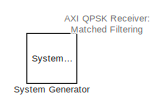
[diagram: root canvas - part 1/3, top center region]
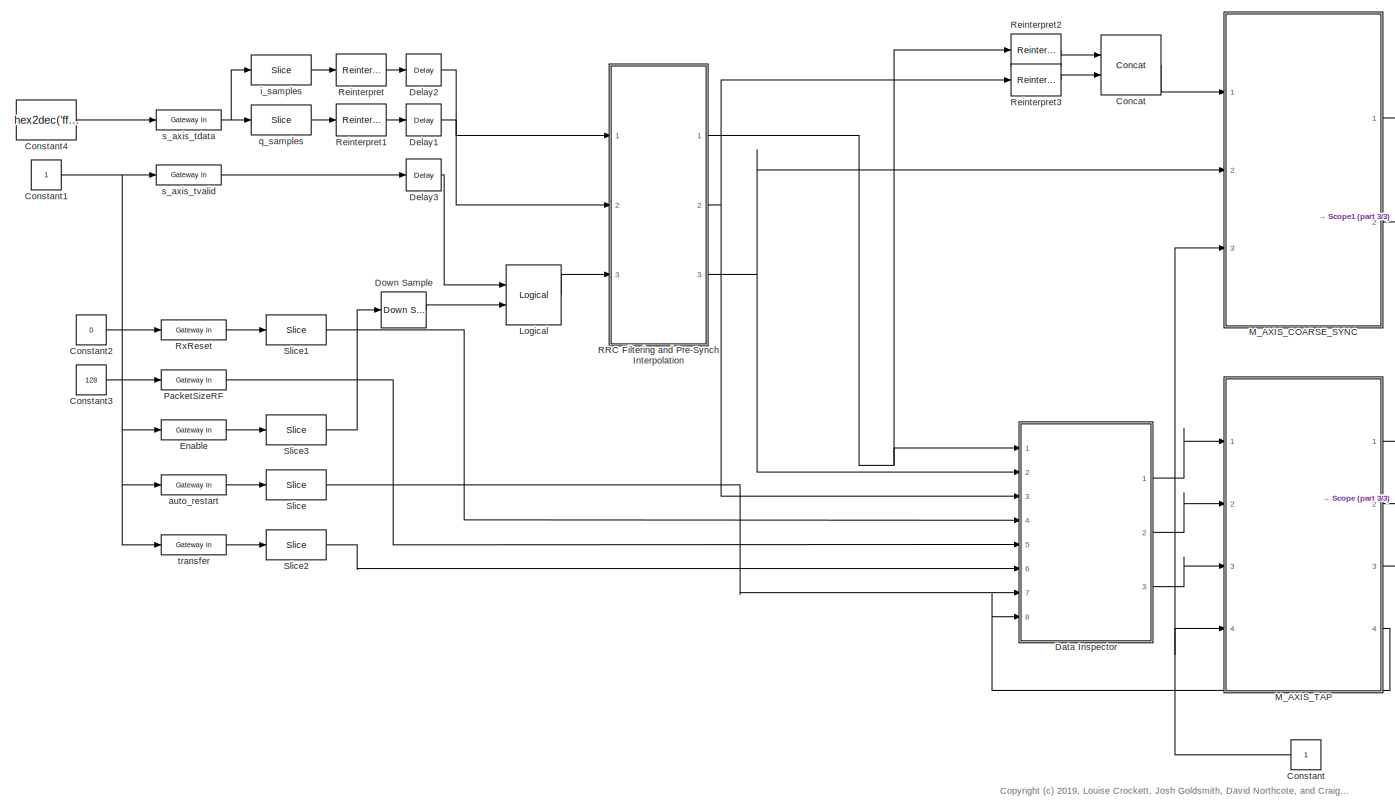
[diagram: root canvas - part 2/3, most of the canvas]
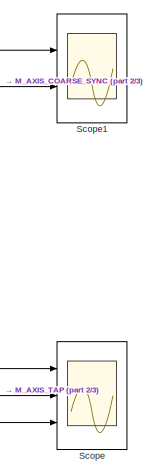
[diagram: root canvas - part 3/3, middle right region]
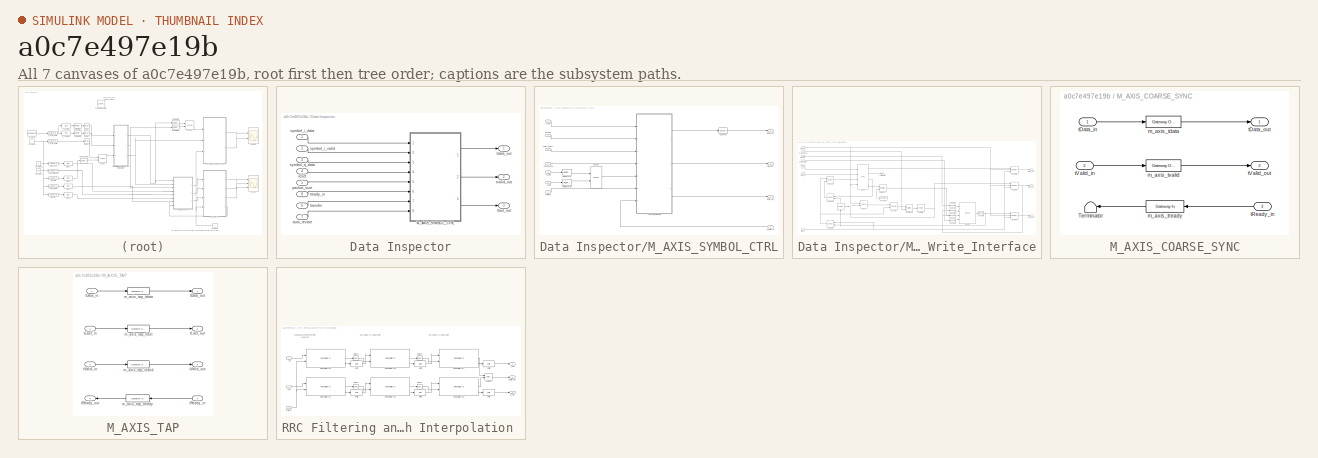
[diagram: thumbnail index - all 7 canvases of the model, root first then tree order]
MODEL slx_a0c7e497e19b
KIND model
CONFIG AbsTol = auto
CONFIG EnableMultiTasking = off
CONFIG FixedStep = auto
CONFIG InitFcn = fs_in = 25.6e6;
CONFIG MaxStep = auto
CONFIG MinStep = auto
CONFIG PreLoadFcn = design_filters_rx;      % run script to generate filter designs.\n\nRb = 1000;   % 1kbit / s\n\nRsym = Rb/2;   % 2 bits per symbol\n\nRsymbol = Rb/2;\n\nOSR = 32;\n\nf_error = 120;\n\nfc = 100e3;\n\nfs_in = 25.6e6;\n\n
CONFIG RelTol = 1e-3
CONFIG SampleTimeConstraint = Unconstrained
CONFIG Solver = VariableStepAuto
CONFIG SolverName = VariableStepAuto
CONFIG StartTime = 0.0
CONFIG StopTime = 10.0
BLOCK [Reference]  System Generator  REF=xbsIndex_r4/ System Generator
  AttributesFormatString = System\nGenerator
  Ports = []
  SourceBlock = xbsIndex_r4/ System Generator
  SourceType = Xilinx System Generator Block
  Tag = genX
  UserDataPersistent = on
BLOCK [Reference] Concat  REF=xbsIndex_r4/Concat
  Ports = [2, 1]
  SourceBlock = xbsIndex_r4/Concat
  SourceType = Xilinx Bus Concatenator Block
BLOCK [Constant] Constant
  OutDataTypeStr = boolean
  SampleTime = 1/fs_in
BLOCK [Constant] Constant1
  OutDataTypeStr = boolean
  SampleTime = -1
BLOCK [Constant] Constant2
  OutDataTypeStr = boolean
  SampleTime = -1
  Value = 0
BLOCK [Constant] Constant3
  OutDataTypeStr = uint32
  SampleTime = -1
  Value = 128
BLOCK [Constant] Constant4
  OutDataTypeStr = uint32
  SampleTime = 1/fs_in
  Value = hex2dec('ffff0000')
BLOCK [SubSystem] Data Inspector
  Ports = [8, 3]
  RequestExecContextInheritance = off
BLOCK [SubSystem] Data Inspector/M_AXIS_SYMBOL_CTRL
  Ports = [8, 3]
  RequestExecContextInheritance = off
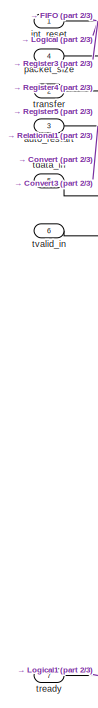
[diagram: Data Inspector/M_AXIS_SYMBOL_CTRL/AXI_Write_Interface - part 1/3, left side, full height]
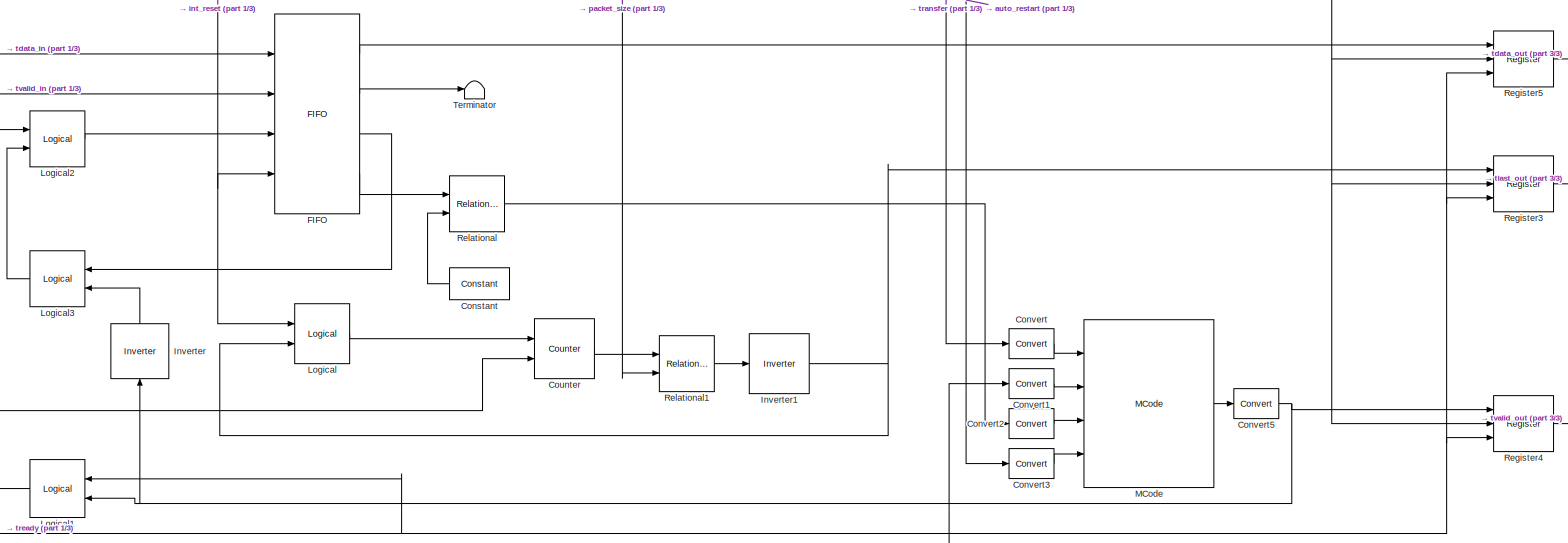
[diagram: Data Inspector/M_AXIS_SYMBOL_CTRL/AXI_Write_Interface - part 2/3, most of the canvas]
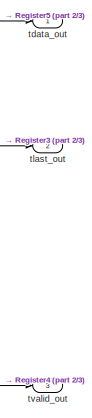
[diagram: Data Inspector/M_AXIS_SYMBOL_CTRL/AXI_Write_Interface - part 3/3, middle right region]
BLOCK [SubSystem] Data Inspector/M_AXIS_SYMBOL_CTRL/AXI_Write_Interface
  Ports = [7, 3]
  RequestExecContextInheritance = off
BLOCK [Reference] Data Inspector/M_AXIS_SYMBOL_CTRL/AXI_Write_Interface/Constant  REF=xbsIndex_r4/Constant
  Ports = [0, 1]
  SourceBlock = xbsIndex_r4/Constant
  SourceType = Xilinx Constant Block Block
BLOCK [Reference] Data Inspector/M_AXIS_SYMBOL_CTRL/AXI_Write_Interface/Convert  REF=xbsIndex_r4/Convert
  Ports = [1, 1]
  SourceBlock = xbsIndex_r4/Convert
  SourceType = Xilinx Type Converter Block
BLOCK [Reference] Data Inspector/M_AXIS_SYMBOL_CTRL/AXI_Write_Interface/Convert1  REF=xbsIndex_r4/Convert
  Ports = [1, 1]
  SourceBlock = xbsIndex_r4/Convert
  SourceType = Xilinx Type Converter Block
BLOCK [Reference] Data Inspector/M_AXIS_SYMBOL_CTRL/AXI_Write_Interface/Convert2  REF=xbsIndex_r4/Convert
  Ports = [1, 1]
  SourceBlock = xbsIndex_r4/Convert
  SourceType = Xilinx Type Converter Block
BLOCK [Reference] Data Inspector/M_AXIS_SYMBOL_CTRL/AXI_Write_Interface/Convert3  REF=xbsIndex_r4/Convert
  Ports = [1, 1]
  SourceBlock = xbsIndex_r4/Convert
  SourceType = Xilinx Type Converter Block
BLOCK [Reference] Data Inspector/M_AXIS_SYMBOL_CTRL/AXI_Write_Interface/Convert5  REF=xbsIndex_r4/Convert
  Ports = [1, 1]
  SourceBlock = xbsIndex_r4/Convert
  SourceType = Xilinx Type Converter Block
BLOCK [Reference] Data Inspector/M_AXIS_SYMBOL_CTRL/AXI_Write_Interface/Counter  REF=xbsIndex_r4/Counter
  Ports = [2, 1]
  SourceBlock = xbsIndex_r4/Counter
  SourceType = Xilinx Counter Block
BLOCK [Reference] Data Inspector/M_AXIS_SYMBOL_CTRL/AXI_Write_Interface/FIFO  REF=xbsIndex_r4/FIFO
  Ports = [4, 4]
  SourceBlock = xbsIndex_r4/FIFO
  SourceType = Xilinx FIFO Block Block
BLOCK [Reference] Data Inspector/M_AXIS_SYMBOL_CTRL/AXI_Write_Interface/Inverter  REF=xbsIndex_r4/Inverter
  NameLocation = left
  Ports = [1, 1]
  SourceBlock = xbsIndex_r4/Inverter
  SourceType = Xilinx Inverter Block
BLOCK [Reference] Data Inspector/M_AXIS_SYMBOL_CTRL/AXI_Write_Interface/Inverter1  REF=xbsIndex_r4/Inverter
  Ports = [1, 1]
  SourceBlock = xbsIndex_r4/Inverter
  SourceType = Xilinx Inverter Block
BLOCK [Reference] Data Inspector/M_AXIS_SYMBOL_CTRL/AXI_Write_Interface/Logical  REF=xbsIndex_r4/Logical
  Ports = [2, 1]
  SourceBlock = xbsIndex_r4/Logical
  SourceType = Xilinx Logical Block Block
BLOCK [Reference] Data Inspector/M_AXIS_SYMBOL_CTRL/AXI_Write_Interface/Logical1  REF=xbsIndex_r4/Logical
  NameLocation = top
  Ports = [2, 1]
  SourceBlock = xbsIndex_r4/Logical
  SourceType = Xilinx Logical Block Block
BLOCK [Reference] Data Inspector/M_AXIS_SYMBOL_CTRL/AXI_Write_Interface/Logical2  REF=xbsIndex_r4/Logical
  Ports = [2, 1]
  SourceBlock = xbsIndex_r4/Logical
  SourceType = Xilinx Logical Block Block
BLOCK [Reference] Data Inspector/M_AXIS_SYMBOL_CTRL/AXI_Write_Interface/Logical3  REF=xbsIndex_r4/Logical
  NameLocation = top
  Ports = [2, 1]
  SourceBlock = xbsIndex_r4/Logical
  SourceType = Xilinx Logical Block Block
BLOCK [Reference] Data Inspector/M_AXIS_SYMBOL_CTRL/AXI_Write_Interface/MCode  REF=xbsIndex_r4/MCode
  Ports = [4, 1]
  SourceBlock = xbsIndex_r4/MCode
  SourceType = Xilinx MCode Block Block
BLOCK [Reference] Data Inspector/M_AXIS_SYMBOL_CTRL/AXI_Write_Interface/Register3  REF=xbsIndex_r4/Register
  Ports = [3, 1]
  SourceBlock = xbsIndex_r4/Register
  SourceType = Xilinx Register Block
BLOCK [Reference] Data Inspector/M_AXIS_SYMBOL_CTRL/AXI_Write_Interface/Register4  REF=xbsIndex_r4/Register
  Ports = [3, 1]
  SourceBlock = xbsIndex_r4/Register
  SourceType = Xilinx Register Block
BLOCK [Reference] Data Inspector/M_AXIS_SYMBOL_CTRL/AXI_Write_Interface/Register5  REF=xbsIndex_r4/Register
  Ports = [3, 1]
  SourceBlock = xbsIndex_r4/Register
  SourceType = Xilinx Register Block
BLOCK [Reference] Data Inspector/M_AXIS_SYMBOL_CTRL/AXI_Write_Interface/Relational  REF=xbsIndex_r4/Relational
  Ports = [2, 1]
  SourceBlock = xbsIndex_r4/Relational
  SourceType = Xilinx Arithmetic Relational Operator Block
BLOCK [Reference] Data Inspector/M_AXIS_SYMBOL_CTRL/AXI_Write_Interface/Relational1  REF=xbsIndex_r4/Relational
  Ports = [2, 1]
  SourceBlock = xbsIndex_r4/Relational
  SourceType = Xilinx Arithmetic Relational Operator Block
BLOCK [Terminator] Data Inspector/M_AXIS_SYMBOL_CTRL/AXI_Write_Interface/Terminator
BLOCK [Inport] Data Inspector/M_AXIS_SYMBOL_CTRL/AXI_Write_Interface/auto_restart
  Port = 3
BLOCK [Inport] Data Inspector/M_AXIS_SYMBOL_CTRL/AXI_Write_Interface/int_reset
BLOCK [Inport] Data Inspector/M_AXIS_SYMBOL_CTRL/AXI_Write_Interface/packet_size
  Port = 4
BLOCK [Inport] Data Inspector/M_AXIS_SYMBOL_CTRL/AXI_Write_Interface/tdata_in
  Port = 5
BLOCK [Outport] Data Inspector/M_AXIS_SYMBOL_CTRL/AXI_Write_Interface/tdata_out
  VectorParamsAs1DForOutWhenUnconnected = off
BLOCK [Outport] Data Inspector/M_AXIS_SYMBOL_CTRL/AXI_Write_Interface/tlast_out
  Port = 2
  VectorParamsAs1DForOutWhenUnconnected = off
BLOCK [Inport] Data Inspector/M_AXIS_SYMBOL_CTRL/AXI_Write_Interface/transfer
  Port = 2
BLOCK [Inport] Data Inspector/M_AXIS_SYMBOL_CTRL/AXI_Write_Interface/tready
  Port = 7
BLOCK [Inport] Data Inspector/M_AXIS_SYMBOL_CTRL/AXI_Write_Interface/tvalid_in
  Port = 6
BLOCK [Outport] Data Inspector/M_AXIS_SYMBOL_CTRL/AXI_Write_Interface/tvalid_out
  Port = 3
  VectorParamsAs1DForOutWhenUnconnected = off
BLOCK [Reference] Data Inspector/M_AXIS_SYMBOL_CTRL/Concat  REF=xbsIndex_r4/Concat
  Ports = [2, 1]
  SourceBlock = xbsIndex_r4/Concat
  SourceType = Xilinx Bus Concatenator Block
BLOCK [Reference] Data Inspector/M_AXIS_SYMBOL_CTRL/Convert4  REF=xbsIndex_r4/Convert
  Ports = [1, 1]
  SourceBlock = xbsIndex_r4/Convert
  SourceType = Xilinx Type Converter Block
BLOCK [Reference] Data Inspector/M_AXIS_SYMBOL_CTRL/Reinterpret  REF=xbsIndex_r4/Reinterpret
  Ports = [1, 1]
  SourceBlock = xbsIndex_r4/Reinterpret
  SourceType = Xilinx Type Reinterpreter Block
BLOCK [Reference] Data Inspector/M_AXIS_SYMBOL_CTRL/Reinterpret1  REF=xbsIndex_r4/Reinterpret
  Ports = [1, 1]
  SourceBlock = xbsIndex_r4/Reinterpret
  SourceType = Xilinx Type Reinterpreter Block
BLOCK [Inport] Data Inspector/M_AXIS_SYMBOL_CTRL/auto_restart
  Port = 8
BLOCK [Inport] Data Inspector/M_AXIS_SYMBOL_CTRL/i_data
BLOCK [Inport] Data Inspector/M_AXIS_SYMBOL_CTRL/packet_size
  Port = 5
BLOCK [Inport] Data Inspector/M_AXIS_SYMBOL_CTRL/q_data
  Port = 3
BLOCK [Inport] Data Inspector/M_AXIS_SYMBOL_CTRL/reset
  Port = 4
BLOCK [Outport] Data Inspector/M_AXIS_SYMBOL_CTRL/tdata_out
  VectorParamsAs1DForOutWhenUnconnected = off
BLOCK [Outport] Data Inspector/M_AXIS_SYMBOL_CTRL/tlast_out
  Port = 3
  VectorParamsAs1DForOutWhenUnconnected = off
BLOCK [Inport] Data Inspector/M_AXIS_SYMBOL_CTRL/transfer
  Port = 7
BLOCK [Inport] Data Inspector/M_AXIS_SYMBOL_CTRL/tready_in
  Port = 6
BLOCK [Inport] Data Inspector/M_AXIS_SYMBOL_CTRL/tvalid_in
  Port = 2
BLOCK [Outport] Data Inspector/M_AXIS_SYMBOL_CTRL/tvalid_out
  Port = 2
  VectorParamsAs1DForOutWhenUnconnected = off
BLOCK [Inport] Data Inspector/auto_restart
  Port = 7
BLOCK [Inport] Data Inspector/packet_size
  Port = 5
BLOCK [Inport] Data Inspector/reset
  Port = 4
BLOCK [Inport] Data Inspector/symbol_i_data
BLOCK [Inport] Data Inspector/symbol_i_valid
  Port = 2
BLOCK [Inport] Data Inspector/symbol_q_data
  Port = 3
BLOCK [Outport] Data Inspector/tdata_out
  VectorParamsAs1DForOutWhenUnconnected = off
BLOCK [Outport] Data Inspector/tlast_out
  Port = 3
  VectorParamsAs1DForOutWhenUnconnected = off
BLOCK [Inport] Data Inspector/transfer
  Port = 6
BLOCK [Inport] Data Inspector/tready_in
  Port = 8
BLOCK [Outport] Data Inspector/tvalid_out
  Port = 2
  VectorParamsAs1DForOutWhenUnconnected = off
BLOCK [Reference] Delay1  REF=xbsIndex_r4/Delay
  Ports = [1, 1]
  SourceBlock = xbsIndex_r4/Delay
  SourceType = Xilinx Delay Block
BLOCK [Reference] Delay2  REF=xbsIndex_r4/Delay
  Ports = [1, 1]
  SourceBlock = xbsIndex_r4/Delay
  SourceType = Xilinx Delay Block
BLOCK [Reference] Delay3  REF=xbsIndex_r4/Delay
  Ports = [1, 1]
  SourceBlock = xbsIndex_r4/Delay
  SourceType = Xilinx Delay Block
BLOCK [Reference] Down Sample  REF=xbsIndex_r4/Down Sample
  Ports = [1, 1]
  SourceBlock = xbsIndex_r4/Down Sample
  SourceType = Xilinx Down Sampler Block
BLOCK [Reference] Enable  REF=xbsIndex_r4/Gateway In
  Ports = [1, 1]
  SourceBlock = xbsIndex_r4/Gateway In
  SourceType = Xilinx Gateway In Block
BLOCK [Reference] Logical  REF=xbsIndex_r4/Logical
  Ports = [2, 1]
  SourceBlock = xbsIndex_r4/Logical
  SourceType = Xilinx Logical Block Block
BLOCK [SubSystem] M_AXIS_COARSE_SYNC
  Ports = [3, 2]
  RequestExecContextInheritance = off
BLOCK [Terminator] M_AXIS_COARSE_SYNC/Terminator
BLOCK [Reference] M_AXIS_COARSE_SYNC/m_axis_tdata  REF=xbsIndex_r4/Gateway Out
  Ports = [1, 1]
  SourceBlock = xbsIndex_r4/Gateway Out
  SourceType = Xilinx Gateway Out Block
BLOCK [Reference] M_AXIS_COARSE_SYNC/m_axis_tready  REF=xbsIndex_r4/Gateway In
  Ports = [1, 1]
  SourceBlock = xbsIndex_r4/Gateway In
  SourceType = Xilinx Gateway In Block
BLOCK [Reference] M_AXIS_COARSE_SYNC/m_axis_tvalid  REF=xbsIndex_r4/Gateway Out
  Ports = [1, 1]
  SourceBlock = xbsIndex_r4/Gateway Out
  SourceType = Xilinx Gateway Out Block
BLOCK [Inport] M_AXIS_COARSE_SYNC/tData_in
BLOCK [Outport] M_AXIS_COARSE_SYNC/tData_out
  VectorParamsAs1DForOutWhenUnconnected = off
BLOCK [Inport] M_AXIS_COARSE_SYNC/tReady_in
  Port = 3
BLOCK [Inport] M_AXIS_COARSE_SYNC/tValid_in
  Port = 2
BLOCK [Outport] M_AXIS_COARSE_SYNC/tValid_out
  Port = 2
  VectorParamsAs1DForOutWhenUnconnected = off
BLOCK [SubSystem] M_AXIS_TAP
  Ports = [4, 4]
  RequestExecContextInheritance = off
BLOCK [Reference] M_AXIS_TAP/m_axis_tap_tdata  REF=xbsIndex_r4/Gateway Out
  Ports = [1, 1]
  SourceBlock = xbsIndex_r4/Gateway Out
  SourceType = Xilinx Gateway Out Block
BLOCK [Reference] M_AXIS_TAP/m_axis_tap_tlast  REF=xbsIndex_r4/Gateway Out
  Ports = [1, 1]
  SourceBlock = xbsIndex_r4/Gateway Out
  SourceType = Xilinx Gateway Out Block
BLOCK [Reference] M_AXIS_TAP/m_axis_tap_tready  REF=xbsIndex_r4/Gateway In
  Ports = [1, 1]
  SourceBlock = xbsIndex_r4/Gateway In
  SourceType = Xilinx Gateway In Block
BLOCK [Reference] M_AXIS_TAP/m_axis_tap_tvalid  REF=xbsIndex_r4/Gateway Out
  Ports = [1, 1]
  SourceBlock = xbsIndex_r4/Gateway Out
  SourceType = Xilinx Gateway Out Block
BLOCK [Inport] M_AXIS_TAP/tData_in
BLOCK [Outport] M_AXIS_TAP/tData_out
  VectorParamsAs1DForOutWhenUnconnected = off
BLOCK [Inport] M_AXIS_TAP/tLast_in
  Port = 3
BLOCK [Outport] M_AXIS_TAP/tLast_out
  Port = 2
  VectorParamsAs1DForOutWhenUnconnected = off
BLOCK [Inport] M_AXIS_TAP/tReady_in
  Port = 4
BLOCK [Outport] M_AXIS_TAP/tReady_out
  Port = 4
  VectorParamsAs1DForOutWhenUnconnected = off
BLOCK [Inport] M_AXIS_TAP/tValid_in
  Port = 2
BLOCK [Outport] M_AXIS_TAP/tValid_out
  Port = 3
  VectorParamsAs1DForOutWhenUnconnected = off
BLOCK [Reference] PacketSizeRF  REF=xbsIndex_r4/Gateway In
  Ports = [1, 1]
  SourceBlock = xbsIndex_r4/Gateway In
  SourceType = Xilinx Gateway In Block
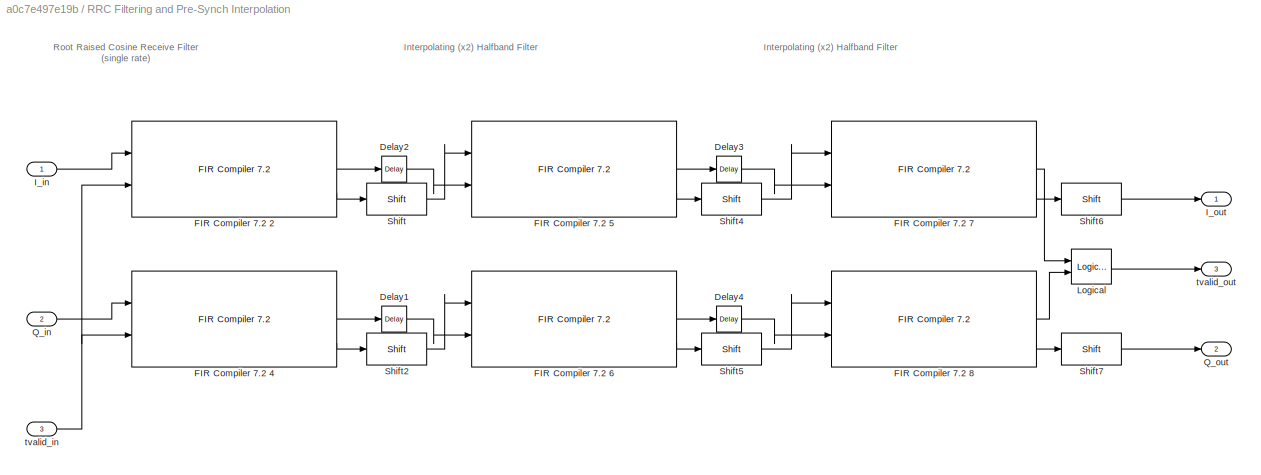
BLOCK [SubSystem] RRC Filtering and Pre-Synch Interpolation 
  Ports = [3, 3]
  RequestExecContextInheritance = off
BLOCK [Reference] RRC Filtering and Pre-Synch Interpolation /Delay1  REF=xbsIndex_r4/Delay
  Ports = [1, 1]
  SourceBlock = xbsIndex_r4/Delay
  SourceType = Xilinx Delay Block
BLOCK [Reference] RRC Filtering and Pre-Synch Interpolation /Delay2  REF=xbsIndex_r4/Delay
  Ports = [1, 1]
  SourceBlock = xbsIndex_r4/Delay
  SourceType = Xilinx Delay Block
BLOCK [Reference] RRC Filtering and Pre-Synch Interpolation /Delay3  REF=xbsIndex_r4/Delay
  Ports = [1, 1]
  SourceBlock = xbsIndex_r4/Delay
  SourceType = Xilinx Delay Block
BLOCK [Reference] RRC Filtering and Pre-Synch Interpolation /Delay4  REF=xbsIndex_r4/Delay
  Ports = [1, 1]
  SourceBlock = xbsIndex_r4/Delay
  SourceType = Xilinx Delay Block
BLOCK [Reference] RRC Filtering and Pre-Synch Interpolation /FIR Compiler 7.2 2  REF=xbsIndex_r4/FIR Compiler 7.2 
  Ports = [2, 3]
  SourceBlock = xbsIndex_r4/FIR Compiler 7.2
  SourceType = Xilinx FIR Compiler 7.2 Block
BLOCK [Reference] RRC Filtering and Pre-Synch Interpolation /FIR Compiler 7.2 4  REF=xbsIndex_r4/FIR Compiler 7.2 
  Ports = [2, 3]
  SourceBlock = xbsIndex_r4/FIR Compiler 7.2
  SourceType = Xilinx FIR Compiler 7.2 Block
BLOCK [Reference] RRC Filtering and Pre-Synch Interpolation /FIR Compiler 7.2 5  REF=xbsIndex_r4/FIR Compiler 7.2 
  Ports = [2, 3]
  SourceBlock = xbsIndex_r4/FIR Compiler 7.2
  SourceType = Xilinx FIR Compiler 7.2 Block
BLOCK [Reference] RRC Filtering and Pre-Synch Interpolation /FIR Compiler 7.2 6  REF=xbsIndex_r4/FIR Compiler 7.2 
  Ports = [2, 3]
  SourceBlock = xbsIndex_r4/FIR Compiler 7.2
  SourceType = Xilinx FIR Compiler 7.2 Block
BLOCK [Reference] RRC Filtering and Pre-Synch Interpolation /FIR Compiler 7.2 7  REF=xbsIndex_r4/FIR Compiler 7.2 
  Ports = [2, 3]
  SourceBlock = xbsIndex_r4/FIR Compiler 7.2
  SourceType = Xilinx FIR Compiler 7.2 Block
BLOCK [Reference] RRC Filtering and Pre-Synch Interpolation /FIR Compiler 7.2 8  REF=xbsIndex_r4/FIR Compiler 7.2 
  Ports = [2, 3]
  SourceBlock = xbsIndex_r4/FIR Compiler 7.2
  SourceType = Xilinx FIR Compiler 7.2 Block
BLOCK [Inport] RRC Filtering and Pre-Synch Interpolation /I_in
BLOCK [Outport] RRC Filtering and Pre-Synch Interpolation /I_out
  VectorParamsAs1DForOutWhenUnconnected = off
BLOCK [Reference] RRC Filtering and Pre-Synch Interpolation /Logical  REF=xbsIndex_r4/Logical
  Ports = [2, 1]
  SourceBlock = xbsIndex_r4/Logical
  SourceType = Xilinx Logical Block Block
BLOCK [Inport] RRC Filtering and Pre-Synch Interpolation /Q_in
  Port = 2
BLOCK [Outport] RRC Filtering and Pre-Synch Interpolation /Q_out
  Port = 2
  VectorParamsAs1DForOutWhenUnconnected = off
BLOCK [Reference] RRC Filtering and Pre-Synch Interpolation /Shift  REF=xbsIndex_r4/Shift
  Ports = [1, 1]
  SourceBlock = xbsIndex_r4/Shift
  SourceType = Xilinx Binary Shift Operator Block
BLOCK [Reference] RRC Filtering and Pre-Synch Interpolation /Shift2  REF=xbsIndex_r4/Shift
  Ports = [1, 1]
  SourceBlock = xbsIndex_r4/Shift
  SourceType = Xilinx Binary Shift Operator Block
BLOCK [Reference] RRC Filtering and Pre-Synch Interpolation /Shift4  REF=xbsIndex_r4/Shift
  Ports = [1, 1]
  SourceBlock = xbsIndex_r4/Shift
  SourceType = Xilinx Binary Shift Operator Block
BLOCK [Reference] RRC Filtering and Pre-Synch Interpolation /Shift5  REF=xbsIndex_r4/Shift
  Ports = [1, 1]
  SourceBlock = xbsIndex_r4/Shift
  SourceType = Xilinx Binary Shift Operator Block
BLOCK [Reference] RRC Filtering and Pre-Synch Interpolation /Shift6  REF=xbsIndex_r4/Shift
  Ports = [1, 1]
  SourceBlock = xbsIndex_r4/Shift
  SourceType = Xilinx Binary Shift Operator Block
BLOCK [Reference] RRC Filtering and Pre-Synch Interpolation /Shift7  REF=xbsIndex_r4/Shift
  Ports = [1, 1]
  SourceBlock = xbsIndex_r4/Shift
  SourceType = Xilinx Binary Shift Operator Block
BLOCK [Inport] RRC Filtering and Pre-Synch Interpolation /tvalid_in
  Port = 3
BLOCK [Outport] RRC Filtering and Pre-Synch Interpolation /tvalid_out
  Port = 3
  VectorParamsAs1DForOutWhenUnconnected = off
BLOCK [Reference] Reinterpret  REF=xbsIndex_r4/Reinterpret
  Ports = [1, 1]
  SourceBlock = xbsIndex_r4/Reinterpret
  SourceType = Xilinx Type Reinterpreter Block
BLOCK [Reference] Reinterpret1  REF=xbsIndex_r4/Reinterpret
  Ports = [1, 1]
  SourceBlock = xbsIndex_r4/Reinterpret
  SourceType = Xilinx Type Reinterpreter Block
BLOCK [Reference] Reinterpret2  REF=xbsIndex_r4/Reinterpret
  Ports = [1, 1]
  SourceBlock = xbsIndex_r4/Reinterpret
  SourceType = Xilinx Type Reinterpreter Block
BLOCK [Reference] Reinterpret3  REF=xbsIndex_r4/Reinterpret
  Ports = [1, 1]
  SourceBlock = xbsIndex_r4/Reinterpret
  SourceType = Xilinx Type Reinterpreter Block
BLOCK [Reference] RxReset  REF=xbsIndex_r4/Gateway In
  Ports = [1, 1]
  SourceBlock = xbsIndex_r4/Gateway In
  SourceType = Xilinx Gateway In Block
BLOCK [Scope] Scope
  Floating = off
  NumInputPorts = 3
  Ports = [3]
  ScopeSpecificationString = Simulink.scopes.TimeScopeBlockCfg('CurrentConfiguration', extmgr.ConfigurationSet(extmgr.Configuration('Core','General UI',true),extmgr.Configuration('Core','Source UI',true),extmgr.Configuration('Sources','WiredSimulink',true,'DataLoggingVariableName','ScopeData1'),extmgr.Configuration('Visuals','Time Domain',true,'SerializedDisplays',{struct('MinYLimReal','-1.00000','MaxYLimReal','1.00000','YLab...<+2832ch>
BLOCK [Scope] Scope1
  Floating = off
  NumInputPorts = 2
  Ports = [2]
  ScopeSpecificationString = Simulink.scopes.TimeScopeBlockCfg('CurrentConfiguration', extmgr.ConfigurationSet(extmgr.Configuration('Core','General UI',true),extmgr.Configuration('Core','Source UI',true),extmgr.Configuration('Sources','WiredSimulink',true),extmgr.Configuration('Visuals','Time Domain',true,'SerializedDisplays',{struct('MinYLimReal','-1.00000','MaxYLimReal','1.00000','YLabelReal','','MinYLimMag','0.00000','MaxY...<+2407ch>
BLOCK [Reference] Slice  REF=xbsIndex_r4/Slice
  Ports = [1, 1]
  SourceBlock = xbsIndex_r4/Slice
  SourceType = Xilinx Bit Slice Extractor Block
BLOCK [Reference] Slice1  REF=xbsIndex_r4/Slice
  Ports = [1, 1]
  SourceBlock = xbsIndex_r4/Slice
  SourceType = Xilinx Bit Slice Extractor Block
BLOCK [Reference] Slice2  REF=xbsIndex_r4/Slice
  Ports = [1, 1]
  SourceBlock = xbsIndex_r4/Slice
  SourceType = Xilinx Bit Slice Extractor Block
BLOCK [Reference] Slice3  REF=xbsIndex_r4/Slice
  Ports = [1, 1]
  SourceBlock = xbsIndex_r4/Slice
  SourceType = Xilinx Bit Slice Extractor Block
BLOCK [Reference] auto_restart  REF=xbsIndex_r4/Gateway In
  Ports = [1, 1]
  SourceBlock = xbsIndex_r4/Gateway In
  SourceType = Xilinx Gateway In Block
BLOCK [Reference] i_samples  REF=xbsIndex_r4/Slice
  Ports = [1, 1]
  SourceBlock = xbsIndex_r4/Slice
  SourceType = Xilinx Bit Slice Extractor Block
BLOCK [Reference] q_samples  REF=xbsIndex_r4/Slice
  Ports = [1, 1]
  SourceBlock = xbsIndex_r4/Slice
  SourceType = Xilinx Bit Slice Extractor Block
BLOCK [Reference] s_axis_tdata  REF=xbsIndex_r4/Gateway In
  Ports = [1, 1]
  SourceBlock = xbsIndex_r4/Gateway In
  SourceType = Xilinx Gateway In Block
BLOCK [Reference] s_axis_tvalid  REF=xbsIndex_r4/Gateway In
  Ports = [1, 1]
  SourceBlock = xbsIndex_r4/Gateway In
  SourceType = Xilinx Gateway In Block
BLOCK [Reference] transfer  REF=xbsIndex_r4/Gateway In
  Ports = [1, 1]
  SourceBlock = xbsIndex_r4/Gateway In
  SourceType = Xilinx Gateway In Block
ANNOTATION (root): AXI QPSK Receiver: Matched Filtering
ANNOTATION (root): C opyright (c) 2019, Louise Crockett, Josh Goldsmith, David Northcote, and Craig Ramsay
ANNOTATION RRC Filtering and Pre-Synch Interpolation : Root Raised Cosine Receive Filter (single rate)
ANNOTATION RRC Filtering and Pre-Synch Interpolation : Interpolating (x2) Halfband Filter
LINE Concat:1 -> M_AXIS_COARSE_SYNC:1
NET Constant1:1 -> Enable:1, auto_restart:1, s_axis_tvalid:1, transfer:1
LINE Constant2:1 -> RxReset:1
LINE Constant3:1 -> PacketSizeRF:1
LINE Constant4:1 -> s_axis_tdata:1
NET Constant:1 -> M_AXIS_COARSE_SYNC:3, M_AXIS_TAP:4
LINE Data Inspector/M_AXIS_SYMBOL_CTRL/AXI_Write_Interface/Constant:1 -> Data Inspector/M_AXIS_SYMBOL_CTRL/AXI_Write_Interface/Relational:2
LINE Data Inspector/M_AXIS_SYMBOL_CTRL/AXI_Write_Interface/Convert1:1 -> Data Inspector/M_AXIS_SYMBOL_CTRL/AXI_Write_Interface/MCode:2
LINE Data Inspector/M_AXIS_SYMBOL_CTRL/AXI_Write_Interface/Convert2:1 -> Data Inspector/M_AXIS_SYMBOL_CTRL/AXI_Write_Interface/MCode:3
LINE Data Inspector/M_AXIS_SYMBOL_CTRL/AXI_Write_Interface/Convert3:1 -> Data Inspector/M_AXIS_SYMBOL_CTRL/AXI_Write_Interface/MCode:4
NET Data Inspector/M_AXIS_SYMBOL_CTRL/AXI_Write_Interface/Convert5:1 -> Data Inspector/M_AXIS_SYMBOL_CTRL/AXI_Write_Interface/Inverter:1, Data Inspector/M_AXIS_SYMBOL_CTRL/AXI_Write_Interface/Logical1:2, Data Inspector/M_AXIS_SYMBOL_CTRL/AXI_Write_Interface/Register4:1
LINE Data Inspector/M_AXIS_SYMBOL_CTRL/AXI_Write_Interface/Convert:1 -> Data Inspector/M_AXIS_SYMBOL_CTRL/AXI_Write_Interface/MCode:1
LINE Data Inspector/M_AXIS_SYMBOL_CTRL/AXI_Write_Interface/Counter:1 -> Data Inspector/M_AXIS_SYMBOL_CTRL/AXI_Write_Interface/Relational1:1
LINE Data Inspector/M_AXIS_SYMBOL_CTRL/AXI_Write_Interface/FIFO:1 -> Data Inspector/M_AXIS_SYMBOL_CTRL/AXI_Write_Interface/Register5:1
LINE Data Inspector/M_AXIS_SYMBOL_CTRL/AXI_Write_Interface/FIFO:2 -> Data Inspector/M_AXIS_SYMBOL_CTRL/AXI_Write_Interface/Terminator:1
LINE Data Inspector/M_AXIS_SYMBOL_CTRL/AXI_Write_Interface/FIFO:3 -> Data Inspector/M_AXIS_SYMBOL_CTRL/AXI_Write_Interface/Logical3:1
LINE Data Inspector/M_AXIS_SYMBOL_CTRL/AXI_Write_Interface/FIFO:4 -> Data Inspector/M_AXIS_SYMBOL_CTRL/AXI_Write_Interface/Relational:1
NET Data Inspector/M_AXIS_SYMBOL_CTRL/AXI_Write_Interface/Inverter1:1 -> Data Inspector/M_AXIS_SYMBOL_CTRL/AXI_Write_Interface/Logical:2, Data Inspector/M_AXIS_SYMBOL_CTRL/AXI_Write_Interface/Register3:1
LINE Data Inspector/M_AXIS_SYMBOL_CTRL/AXI_Write_Interface/Inverter:1 -> Data Inspector/M_AXIS_SYMBOL_CTRL/AXI_Write_Interface/Logical3:2
NET Data Inspector/M_AXIS_SYMBOL_CTRL/AXI_Write_Interface/Logical1:1 -> Data Inspector/M_AXIS_SYMBOL_CTRL/AXI_Write_Interface/Counter:2, Data Inspector/M_AXIS_SYMBOL_CTRL/AXI_Write_Interface/Logical2:1
LINE Data Inspector/M_AXIS_SYMBOL_CTRL/AXI_Write_Interface/Logical2:1 -> Data Inspector/M_AXIS_SYMBOL_CTRL/AXI_Write_Interface/FIFO:3
LINE Data Inspector/M_AXIS_SYMBOL_CTRL/AXI_Write_Interface/Logical3:1 -> Data Inspector/M_AXIS_SYMBOL_CTRL/AXI_Write_Interface/Logical2:2
LINE Data Inspector/M_AXIS_SYMBOL_CTRL/AXI_Write_Interface/Logical:1 -> Data Inspector/M_AXIS_SYMBOL_CTRL/AXI_Write_Interface/Counter:1
LINE Data Inspector/M_AXIS_SYMBOL_CTRL/AXI_Write_Interface/MCode:1 -> Data Inspector/M_AXIS_SYMBOL_CTRL/AXI_Write_Interface/Convert5:1
NET Data Inspector/M_AXIS_SYMBOL_CTRL/AXI_Write_Interface/Register3:1 -> Data Inspector/M_AXIS_SYMBOL_CTRL/AXI_Write_Interface/Convert1:1, Data Inspector/M_AXIS_SYMBOL_CTRL/AXI_Write_Interface/tlast_out:1
LINE Data Inspector/M_AXIS_SYMBOL_CTRL/AXI_Write_Interface/Register4:1 -> Data Inspector/M_AXIS_SYMBOL_CTRL/AXI_Write_Interface/tvalid_out:1
LINE Data Inspector/M_AXIS_SYMBOL_CTRL/AXI_Write_Interface/Register5:1 -> Data Inspector/M_AXIS_SYMBOL_CTRL/AXI_Write_Interface/tdata_out:1
LINE Data Inspector/M_AXIS_SYMBOL_CTRL/AXI_Write_Interface/Relational1:1 -> Data Inspector/M_AXIS_SYMBOL_CTRL/AXI_Write_Interface/Inverter1:1
LINE Data Inspector/M_AXIS_SYMBOL_CTRL/AXI_Write_Interface/Relational:1 -> Data Inspector/M_AXIS_SYMBOL_CTRL/AXI_Write_Interface/Convert2:1
LINE Data Inspector/M_AXIS_SYMBOL_CTRL/AXI_Write_Interface/auto_restart:1 -> Data Inspector/M_AXIS_SYMBOL_CTRL/AXI_Write_Interface/Convert3:1
NET Data Inspector/M_AXIS_SYMBOL_CTRL/AXI_Write_Interface/int_reset:1 -> Data Inspector/M_AXIS_SYMBOL_CTRL/AXI_Write_Interface/FIFO:4, Data Inspector/M_AXIS_SYMBOL_CTRL/AXI_Write_Interface/Logical:1, Data Inspector/M_AXIS_SYMBOL_CTRL/AXI_Write_Interface/Register3:2, Data Inspector/M_AXIS_SYMBOL_CTRL/AXI_Write_Interface/Register4:2, Data Inspector/M_AXIS_SYMBOL_CTRL/AXI_Write_Interface/Register5:2
LINE Data Inspector/M_AXIS_SYMBOL_CTRL/AXI_Write_Interface/packet_size:1 -> Data Inspector/M_AXIS_SYMBOL_CTRL/AXI_Write_Interface/Relational1:2
LINE Data Inspector/M_AXIS_SYMBOL_CTRL/AXI_Write_Interface/tdata_in:1 -> Data Inspector/M_AXIS_SYMBOL_CTRL/AXI_Write_Interface/FIFO:1
LINE Data Inspector/M_AXIS_SYMBOL_CTRL/AXI_Write_Interface/transfer:1 -> Data Inspector/M_AXIS_SYMBOL_CTRL/AXI_Write_Interface/Convert:1
NET Data Inspector/M_AXIS_SYMBOL_CTRL/AXI_Write_Interface/tready:1 -> Data Inspector/M_AXIS_SYMBOL_CTRL/AXI_Write_Interface/Logical1:1, Data Inspector/M_AXIS_SYMBOL_CTRL/AXI_Write_Interface/Register3:3, Data Inspector/M_AXIS_SYMBOL_CTRL/AXI_Write_Interface/Register4:3, Data Inspector/M_AXIS_SYMBOL_CTRL/AXI_Write_Interface/Register5:3
LINE Data Inspector/M_AXIS_SYMBOL_CTRL/AXI_Write_Interface/tvalid_in:1 -> Data Inspector/M_AXIS_SYMBOL_CTRL/AXI_Write_Interface/FIFO:2
LINE Data Inspector/M_AXIS_SYMBOL_CTRL/AXI_Write_Interface:1 -> Data Inspector/M_AXIS_SYMBOL_CTRL/Convert4:1
LINE Data Inspector/M_AXIS_SYMBOL_CTRL/AXI_Write_Interface:2 -> Data Inspector/M_AXIS_SYMBOL_CTRL/tlast_out:1
LINE Data Inspector/M_AXIS_SYMBOL_CTRL/AXI_Write_Interface:3 -> Data Inspector/M_AXIS_SYMBOL_CTRL/tvalid_out:1
LINE Data Inspector/M_AXIS_SYMBOL_CTRL/Concat:1 -> Data Inspector/M_AXIS_SYMBOL_CTRL/AXI_Write_Interface:5
LINE Data Inspector/M_AXIS_SYMBOL_CTRL/Convert4:1 -> Data Inspector/M_AXIS_SYMBOL_CTRL/tdata_out:1
LINE Data Inspector/M_AXIS_SYMBOL_CTRL/Reinterpret1:1 -> Data Inspector/M_AXIS_SYMBOL_CTRL/Concat:2
LINE Data Inspector/M_AXIS_SYMBOL_CTRL/Reinterpret:1 -> Data Inspector/M_AXIS_SYMBOL_CTRL/Concat:1
LINE Data Inspector/M_AXIS_SYMBOL_CTRL/auto_restart:1 -> Data Inspector/M_AXIS_SYMBOL_CTRL/AXI_Write_Interface:3
LINE Data Inspector/M_AXIS_SYMBOL_CTRL/i_data:1 -> Data Inspector/M_AXIS_SYMBOL_CTRL/Reinterpret1:1
LINE Data Inspector/M_AXIS_SYMBOL_CTRL/packet_size:1 -> Data Inspector/M_AXIS_SYMBOL_CTRL/AXI_Write_Interface:4
LINE Data Inspector/M_AXIS_SYMBOL_CTRL/q_data:1 -> Data Inspector/M_AXIS_SYMBOL_CTRL/Reinterpret:1
LINE Data Inspector/M_AXIS_SYMBOL_CTRL/reset:1 -> Data Inspector/M_AXIS_SYMBOL_CTRL/AXI_Write_Interface:1
LINE Data Inspector/M_AXIS_SYMBOL_CTRL/transfer:1 -> Data Inspector/M_AXIS_SYMBOL_CTRL/AXI_Write_Interface:2
LINE Data Inspector/M_AXIS_SYMBOL_CTRL/tready_in:1 -> Data Inspector/M_AXIS_SYMBOL_CTRL/AXI_Write_Interface:7
LINE Data Inspector/M_AXIS_SYMBOL_CTRL/tvalid_in:1 -> Data Inspector/M_AXIS_SYMBOL_CTRL/AXI_Write_Interface:6
LINE Data Inspector/M_AXIS_SYMBOL_CTRL:1 -> Data Inspector/tdata_out:1
LINE Data Inspector/M_AXIS_SYMBOL_CTRL:2 -> Data Inspector/tvalid_out:1
LINE Data Inspector/M_AXIS_SYMBOL_CTRL:3 -> Data Inspector/tlast_out:1
LINE Data Inspector/auto_restart:1 -> Data Inspector/M_AXIS_SYMBOL_CTRL:8
LINE Data Inspector/packet_size:1 -> Data Inspector/M_AXIS_SYMBOL_CTRL:5
LINE Data Inspector/reset:1 -> Data Inspector/M_AXIS_SYMBOL_CTRL:4
LINE Data Inspector/symbol_i_data:1 -> Data Inspector/M_AXIS_SYMBOL_CTRL:1
LINE Data Inspector/symbol_i_valid:1 -> Data Inspector/M_AXIS_SYMBOL_CTRL:2
LINE Data Inspector/symbol_q_data:1 -> Data Inspector/M_AXIS_SYMBOL_CTRL:3
LINE Data Inspector/transfer:1 -> Data Inspector/M_AXIS_SYMBOL_CTRL:7
LINE Data Inspector/tready_in:1 -> Data Inspector/M_AXIS_SYMBOL_CTRL:6
LINE Data Inspector:1 -> M_AXIS_TAP:1
LINE Data Inspector:2 -> M_AXIS_TAP:2
LINE Data Inspector:3 -> M_AXIS_TAP:3
LINE Delay1:1 -> RRC Filtering and Pre-Synch Interpolation :2
LINE Delay2:1 -> RRC Filtering and Pre-Synch Interpolation :1
LINE Delay3:1 -> Logical:1
LINE Down Sample:1 -> Logical:2
LINE Enable:1 -> Slice3:1
LINE Logical:1 -> RRC Filtering and Pre-Synch Interpolation :3
LINE M_AXIS_COARSE_SYNC/m_axis_tdata:1 -> M_AXIS_COARSE_SYNC/tData_out:1
LINE M_AXIS_COARSE_SYNC/m_axis_tready:1 -> M_AXIS_COARSE_SYNC/Terminator:1
LINE M_AXIS_COARSE_SYNC/m_axis_tvalid:1 -> M_AXIS_COARSE_SYNC/tValid_out:1
LINE M_AXIS_COARSE_SYNC/tData_in:1 -> M_AXIS_COARSE_SYNC/m_axis_tdata:1
LINE M_AXIS_COARSE_SYNC/tReady_in:1 -> M_AXIS_COARSE_SYNC/m_axis_tready:1
LINE M_AXIS_COARSE_SYNC/tValid_in:1 -> M_AXIS_COARSE_SYNC/m_axis_tvalid:1
LINE M_AXIS_COARSE_SYNC:1 -> Scope1:1
LINE M_AXIS_COARSE_SYNC:2 -> Scope1:2
LINE M_AXIS_TAP/m_axis_tap_tdata:1 -> M_AXIS_TAP/tData_out:1
LINE M_AXIS_TAP/m_axis_tap_tlast:1 -> M_AXIS_TAP/tLast_out:1
LINE M_AXIS_TAP/m_axis_tap_tready:1 -> M_AXIS_TAP/tReady_out:1
LINE M_AXIS_TAP/m_axis_tap_tvalid:1 -> M_AXIS_TAP/tValid_out:1
LINE M_AXIS_TAP/tData_in:1 -> M_AXIS_TAP/m_axis_tap_tdata:1
LINE M_AXIS_TAP/tLast_in:1 -> M_AXIS_TAP/m_axis_tap_tlast:1
LINE M_AXIS_TAP/tReady_in:1 -> M_AXIS_TAP/m_axis_tap_tready:1
LINE M_AXIS_TAP/tValid_in:1 -> M_AXIS_TAP/m_axis_tap_tvalid:1
LINE M_AXIS_TAP:1 -> Scope:1
LINE M_AXIS_TAP:2 -> Scope:2
LINE M_AXIS_TAP:3 -> Scope:3
LINE M_AXIS_TAP:4 -> Data Inspector:8
LINE PacketSizeRF:1 -> Data Inspector:5
LINE RRC Filtering and Pre-Synch Interpolation /Delay1:1 -> RRC Filtering and Pre-Synch Interpolation /FIR Compiler 7.2 6:2
LINE RRC Filtering and Pre-Synch Interpolation /Delay2:1 -> RRC Filtering and Pre-Synch Interpolation /FIR Compiler 7.2 5:2
LINE RRC Filtering and Pre-Synch Interpolation /Delay3:1 -> RRC Filtering and Pre-Synch Interpolation /FIR Compiler 7.2 7:2
LINE RRC Filtering and Pre-Synch Interpolation /Delay4:1 -> RRC Filtering and Pre-Synch Interpolation /FIR Compiler 7.2 8:2
LINE RRC Filtering and Pre-Synch Interpolation /FIR Compiler 7.2 2:2 -> RRC Filtering and Pre-Synch Interpolation /Delay2:1
LINE RRC Filtering and Pre-Synch Interpolation /FIR Compiler 7.2 2:3 -> RRC Filtering and Pre-Synch Interpolation /Shift:1
LINE RRC Filtering and Pre-Synch Interpolation /FIR Compiler 7.2 4:2 -> RRC Filtering and Pre-Synch Interpolation /Delay1:1
LINE RRC Filtering and Pre-Synch Interpolation /FIR Compiler 7.2 4:3 -> RRC Filtering and Pre-Synch Interpolation /Shift2:1
LINE RRC Filtering and Pre-Synch Interpolation /FIR Compiler 7.2 5:2 -> RRC Filtering and Pre-Synch Interpolation /Delay3:1
LINE RRC Filtering and Pre-Synch Interpolation /FIR Compiler 7.2 5:3 -> RRC Filtering and Pre-Synch Interpolation /Shift4:1
LINE RRC Filtering and Pre-Synch Interpolation /FIR Compiler 7.2 6:2 -> RRC Filtering and Pre-Synch Interpolation /Delay4:1
LINE RRC Filtering and Pre-Synch Interpolation /FIR Compiler 7.2 6:3 -> RRC Filtering and Pre-Synch Interpolation /Shift5:1
LINE RRC Filtering and Pre-Synch Interpolation /FIR Compiler 7.2 7:2 -> RRC Filtering and Pre-Synch Interpolation /Logical:1
LINE RRC Filtering and Pre-Synch Interpolation /FIR Compiler 7.2 7:3 -> RRC Filtering and Pre-Synch Interpolation /Shift6:1
LINE RRC Filtering and Pre-Synch Interpolation /FIR Compiler 7.2 8:2 -> RRC Filtering and Pre-Synch Interpolation /Logical:2
LINE RRC Filtering and Pre-Synch Interpolation /FIR Compiler 7.2 8:3 -> RRC Filtering and Pre-Synch Interpolation /Shift7:1
LINE RRC Filtering and Pre-Synch Interpolation /I_in:1 -> RRC Filtering and Pre-Synch Interpolation /FIR Compiler 7.2 2:1
LINE RRC Filtering and Pre-Synch Interpolation /Logical:1 -> RRC Filtering and Pre-Synch Interpolation /tvalid_out:1
LINE RRC Filtering and Pre-Synch Interpolation /Q_in:1 -> RRC Filtering and Pre-Synch Interpolation /FIR Compiler 7.2 4:1
LINE RRC Filtering and Pre-Synch Interpolation /Shift2:1 -> RRC Filtering and Pre-Synch Interpolation /FIR Compiler 7.2 6:1
LINE RRC Filtering and Pre-Synch Interpolation /Shift4:1 -> RRC Filtering and Pre-Synch Interpolation /FIR Compiler 7.2 7:1
LINE RRC Filtering and Pre-Synch Interpolation /Shift5:1 -> RRC Filtering and Pre-Synch Interpolation /FIR Compiler 7.2 8:1
LINE RRC Filtering and Pre-Synch Interpolation /Shift6:1 -> RRC Filtering and Pre-Synch Interpolation /I_out:1
LINE RRC Filtering and Pre-Synch Interpolation /Shift7:1 -> RRC Filtering and Pre-Synch Interpolation /Q_out:1
LINE RRC Filtering and Pre-Synch Interpolation /Shift:1 -> RRC Filtering and Pre-Synch Interpolation /FIR Compiler 7.2 5:1
NET RRC Filtering and Pre-Synch Interpolation /tvalid_in:1 -> RRC Filtering and Pre-Synch Interpolation /FIR Compiler 7.2 2:2, RRC Filtering and Pre-Synch Interpolation /FIR Compiler 7.2 4:2
NET RRC Filtering and Pre-Synch Interpolation :1 -> Data Inspector:1, Reinterpret2:1
NET RRC Filtering and Pre-Synch Interpolation :2 -> Data Inspector:3, Reinterpret3:1
NET RRC Filtering and Pre-Synch Interpolation :3 -> Data Inspector:2, M_AXIS_COARSE_SYNC:2
LINE Reinterpret1:1 -> Delay1:1
LINE Reinterpret2:1 -> Concat:1
LINE Reinterpret3:1 -> Concat:2
LINE Reinterpret:1 -> Delay2:1
LINE RxReset:1 -> Slice1:1
LINE Slice1:1 -> Data Inspector:4
LINE Slice2:1 -> Data Inspector:6
LINE Slice3:1 -> Down Sample:1
LINE Slice:1 -> Data Inspector:7
LINE auto_restart:1 -> Slice:1
LINE i_samples:1 -> Reinterpret:1
LINE q_samples:1 -> Reinterpret1:1
NET s_axis_tdata:1 -> i_samples:1, q_samples:1
LINE s_axis_tvalid:1 -> Delay3:1
LINE transfer:1 -> Slice2:1
note: NET lines group one-source signal fan-out (src -> all destinations, sorted); 1:1 wires keep LINE
